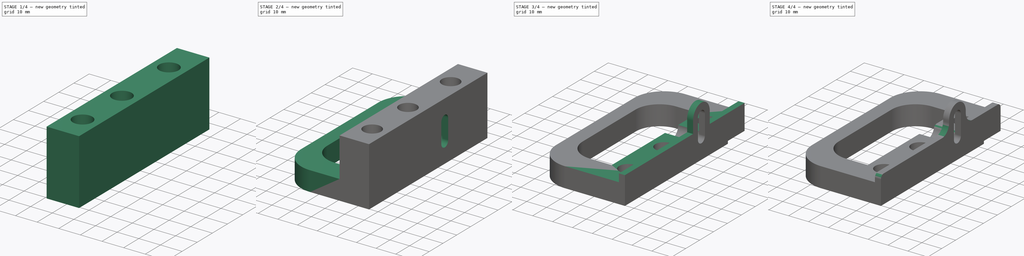
[diagram: build sequence overview — one tinted view per stage of 4, left to right]
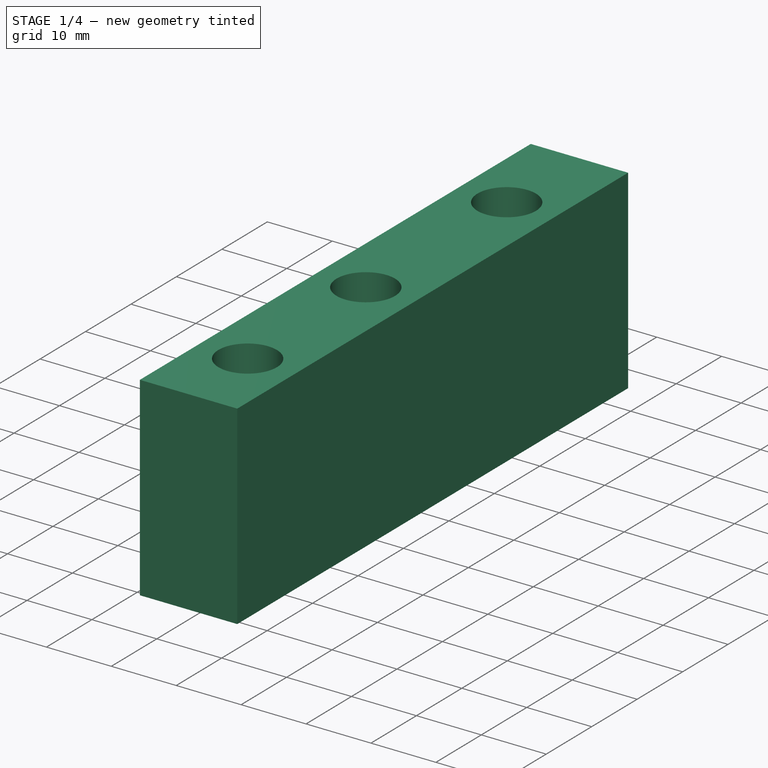
[diagram: stage 1 of 4 — iso view after this stage's code; geometry added in this stage tinted green]
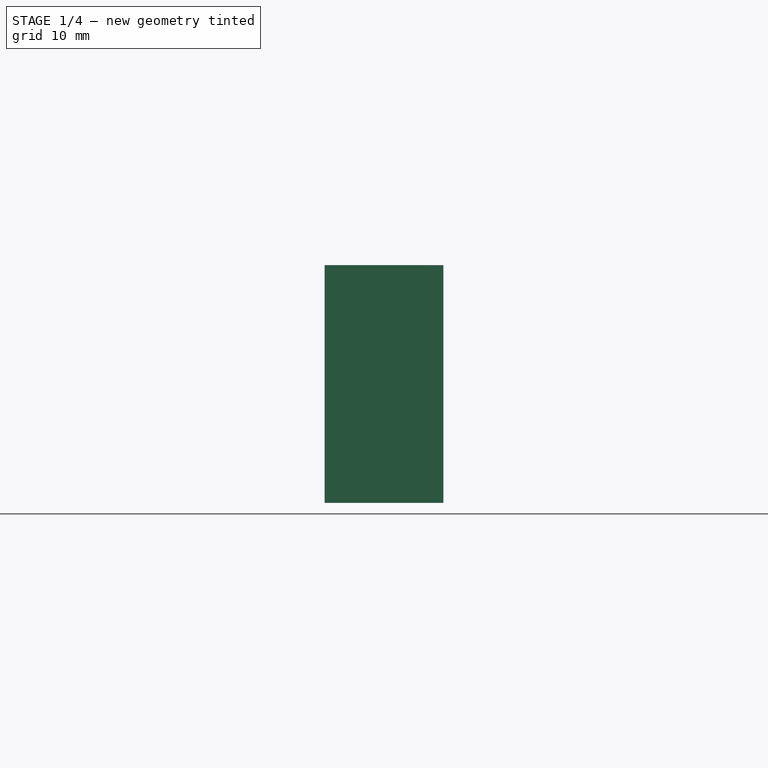
[diagram: stage 1 of 4 — front view after this stage's code; geometry added in this stage tinted green]
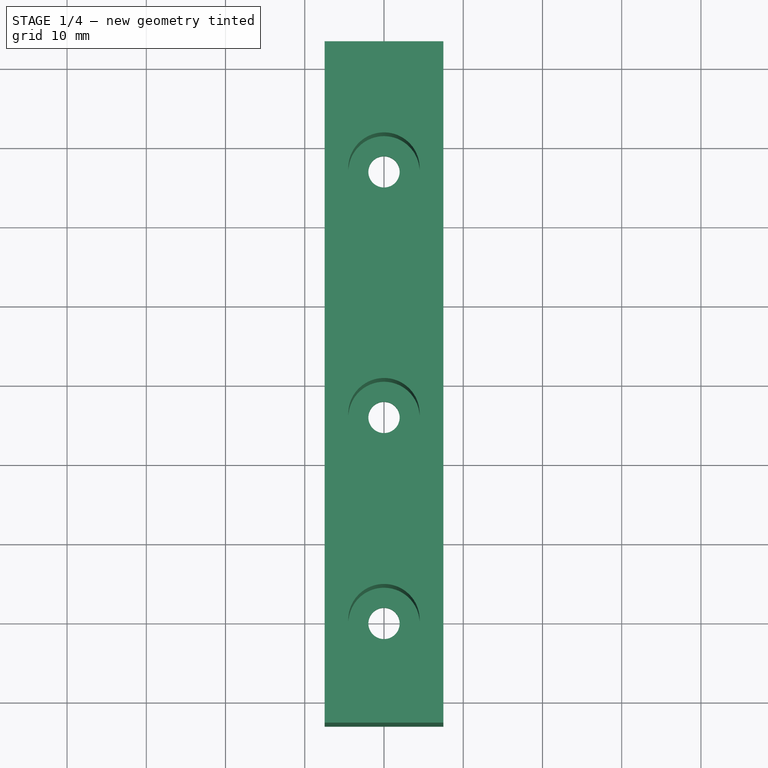
[diagram: stage 1 of 4 — top view after this stage's code; geometry added in this stage tinted green]
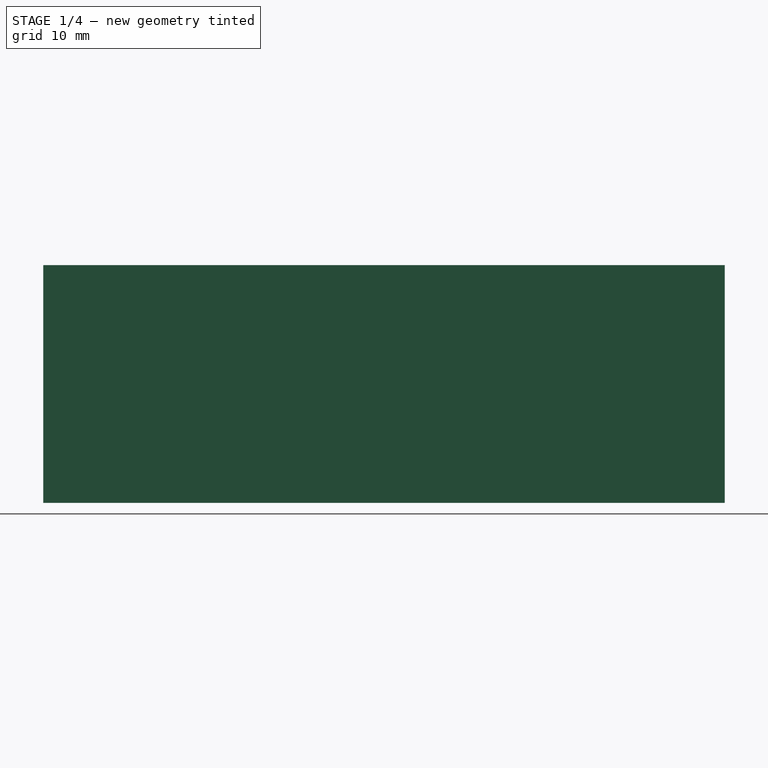
[diagram: stage 1 of 4 — right view after this stage's code; geometry added in this stage tinted green]
FCSTD DOCUMENT  (FreeCAD 1.0R39109 (Git))
Label: RackEars
License: All rights reserved
LicenseURL: https://en.wikipedia.org/wiki/All_rights_reserved
objects: Sketcher::SketchObject×9, PartDesign::Pocket×7, PartDesign::Fillet×3, PartDesign::Pad×2, PartDesign::Plane×1, PartDesign::Body×1
note: 56 computed .brp shape members not serialized (recipe doc carries the construction recipe); baked Part::Feature solids carry a one-line shape summary decoded from their .brp

FEATURE [Sketcher::SketchObject] Sketch
  ArcFitTolerance = 1e-06
  AttachmentSupport = -> [XY_Plane]
  FullyConstrained = true
  MakeInternals = false
  MapMode = 5
  sketch-geometry (5):
    g0: LineSegment StartX=-7.5 StartY=43 StartZ=0 EndX=-7.5 EndY=-43 EndZ=0
    g1: LineSegment StartX=-7.5 StartY=-43 StartZ=0 EndX=7.5 EndY=-43 EndZ=0
    g2: LineSegment StartX=7.5 StartY=-43 StartZ=0 EndX=7.5 EndY=43 EndZ=0
    g3: LineSegment StartX=7.5 StartY=43 StartZ=0 EndX=-7.5 EndY=43 EndZ=0
    g4: GeomPoint [constr] X=0 Y=0 Z=0
  constraints (12):
    c: Coincident(g0,g1)
    c: Coincident(g1,g2)
    c: Coincident(g2,g3)
    c: Coincident(g3,g0)
    c: Vertical(g0)
    c: Vertical(g2)
    c: Horizontal(g1)
    c: Horizontal(g3)
    c: Symmetric(g2,g0,g4)
    c: Coincident(g4,g-1)
    c: DistanceX(g3,g3) = 15
    c: DistanceY(g2,g2) = 86
FEATURE [PartDesign::Pad] Pad
  Direction = (0,0,1)
  Length = 30
  Length2 = 10
  Profile = -> Sketch
  ReferenceAxis = -> Sketch [N_Axis]
  Refine = true
  Suppressed = false
  Type = 0
FEATURE [Sketcher::SketchObject] Sketch001
  ArcFitTolerance = 1e-06
  AttachmentSupport = -> [Pad]
  ExternalGeometry = -> [Pad]
  FullyConstrained = true
  MakeInternals = false
  MapMode = 5
  Placement = pos=(0,0,30) rot=(0,0,1;0rad)
  sketch-geometry (3):
    g0: Circle CenterX=0 CenterY=-30 CenterZ=0 NormalX=0 NormalY=0 NormalZ=1 AngleXU=0 Radius=4.5
    g1: Circle CenterX=0 CenterY=-4 CenterZ=0 NormalX=0 NormalY=0 NormalZ=1 AngleXU=0 Radius=4.5
    g2: Circle CenterX=0 CenterY=27 CenterZ=0 NormalX=0 NormalY=0 NormalZ=1 AngleXU=0 Radius=4.5
  constraints (9):
    c: PointOnObject(g0,g-2)
    c: PointOnObject(g1,g-2)
    c: PointOnObject(g2,g-2)
    c: Distance(g1,g-3) = 39
    c: Diameter(g1) = 9
    c: Distance(g0,g-3) = 13
    c: Distance(g2,g-3) = 70
    c: Equal(g2,g1)
    c: Equal(g1,g0)
FEATURE [PartDesign::Pocket] Pocket
  BaseFeature = -> Pad
  Direction = (0,0,-1)
  Length = 0
  Length2 = 5
  Offset = -2.5
  Profile = -> Sketch001
  ReferenceAxis = -> Sketch001 [N_Axis]
  Refine = true
  Suppressed = false
  Type = 3
  UpToFace = -> Pad [Face5]
FEATURE [Sketcher::SketchObject] Sketch002
  ArcFitTolerance = 1e-06
  AttachmentSupport = -> [Pocket]
  ExternalGeometry = -> [Pocket]
  FullyConstrained = true
  MakeInternals = false
  MapMode = 5
  Placement = pos=(0,0,30) rot=(0,0,1;0rad)
  sketch-geometry (3):
    g0: Circle CenterX=0 CenterY=27 CenterZ=0 NormalX=0 NormalY=0 NormalZ=1 AngleXU=0 Radius=1.975
    g1: Circle CenterX=0 CenterY=-4 CenterZ=0 NormalX=0 NormalY=0 NormalZ=1 AngleXU=0 Radius=1.975
    g2: Circle CenterX=0 CenterY=-30 CenterZ=0 NormalX=0 NormalY=0 NormalZ=1 AngleXU=0 Radius=1.975
  constraints (6):
    c: Coincident(g0,g-3)
    c: Coincident(g1,g-4)
    c: Coincident(g2,g-5)
    c: Equal(g2,g1)
    c: Equal(g1,g0)
    c: Diameter(g0) = 3.95
FEATURE [PartDesign::Pocket] Pocket001
  BaseFeature = -> Pocket
  Direction = (0,0,-1)
  Length = 5
  Length2 = 5
  Profile = -> Sketch002
  ReferenceAxis = -> Sketch002 [N_Axis]
  Refine = true
  Suppressed = false
  Type = 1
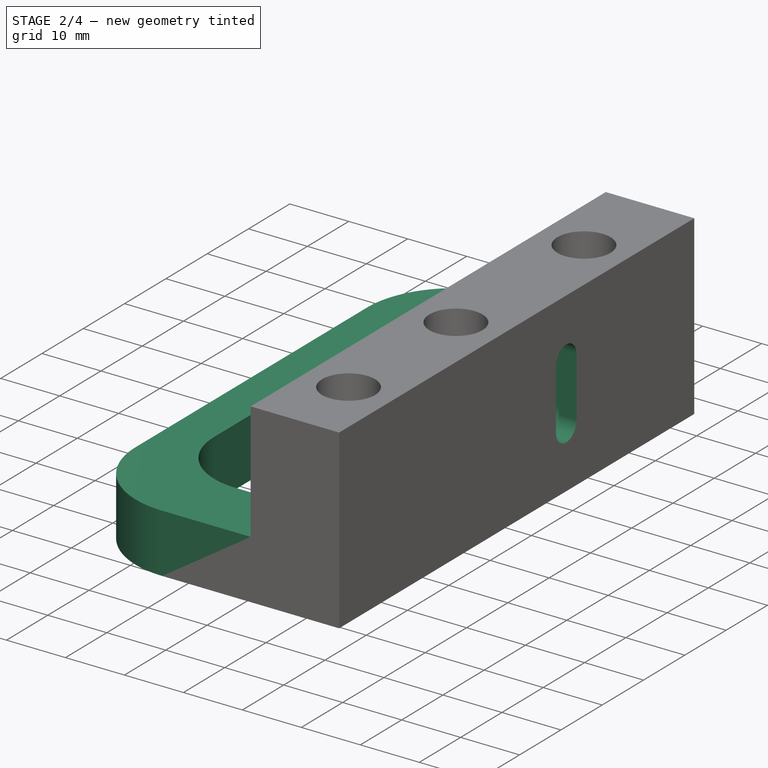
[diagram: stage 2 of 4 — iso view after this stage's code; geometry added in this stage tinted green]
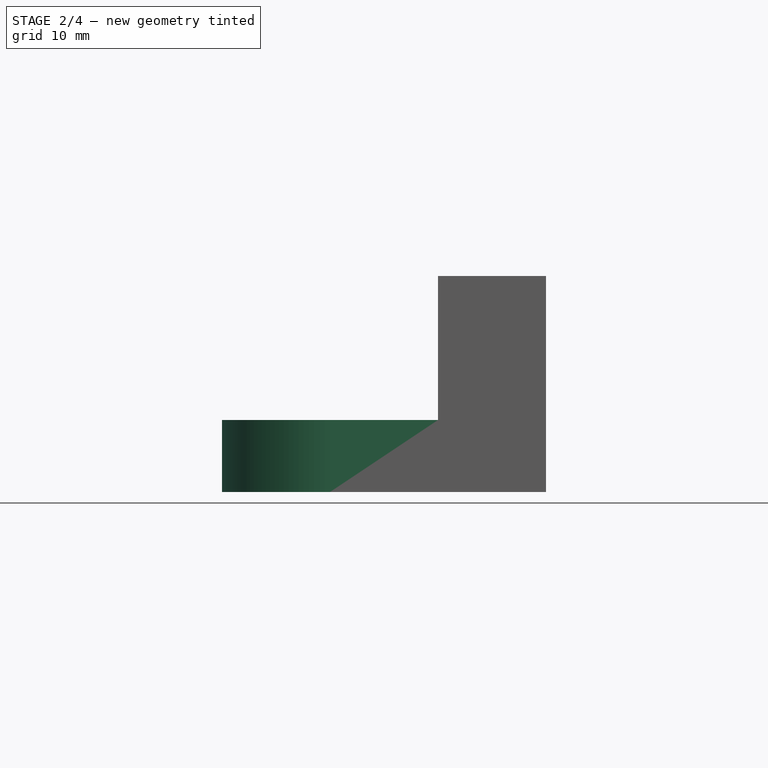
[diagram: stage 2 of 4 — front view after this stage's code; geometry added in this stage tinted green]
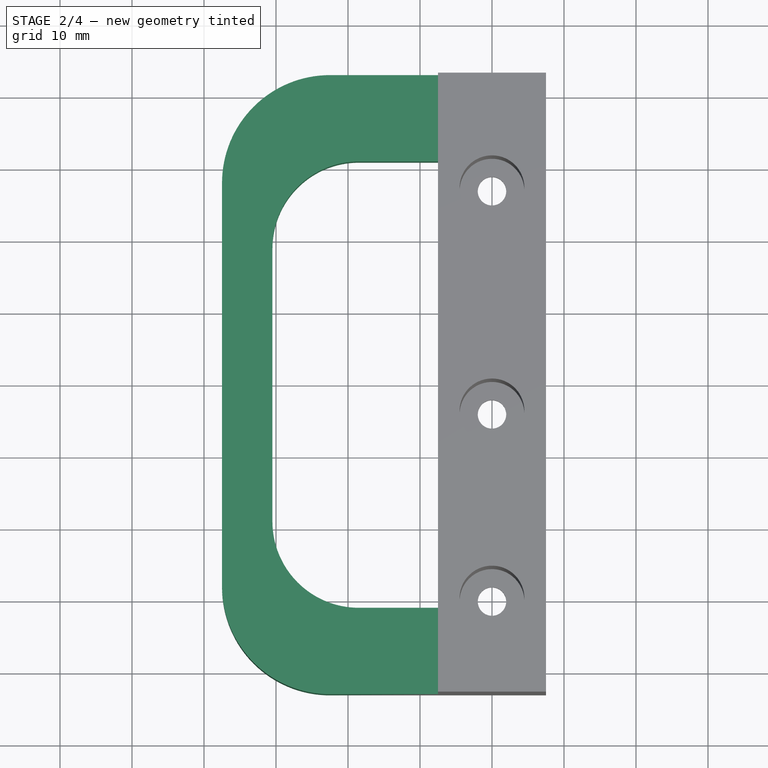
[diagram: stage 2 of 4 — top view after this stage's code; geometry added in this stage tinted green]
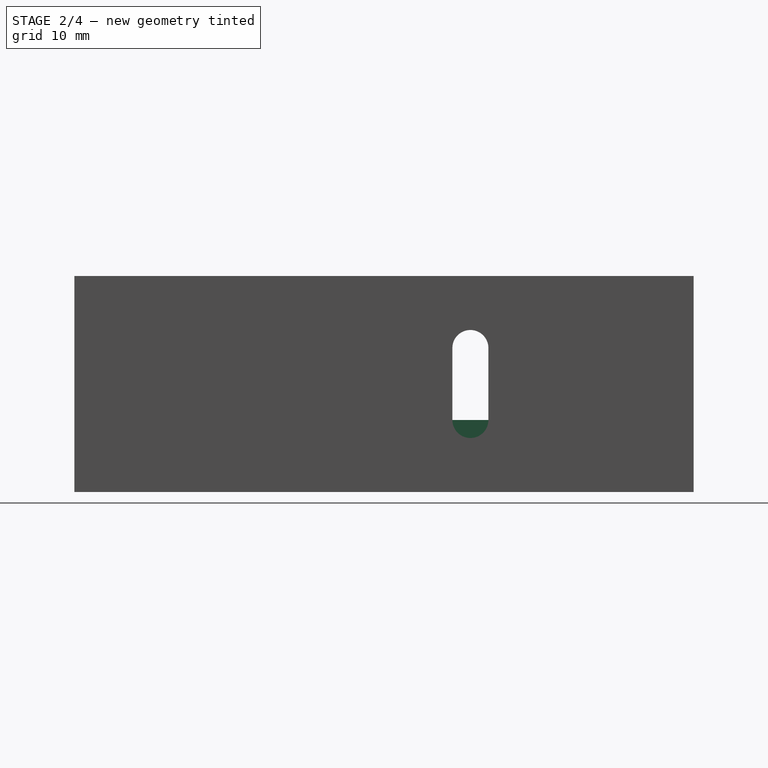
[diagram: stage 2 of 4 — right view after this stage's code; geometry added in this stage tinted green]
FEATURE [Sketcher::SketchObject] Sketch004
  ArcFitTolerance = 1e-06
  AttachmentSupport = -> [Pocket001]
  FullyConstrained = true
  MakeInternals = false
  MapMode = 5
  Placement = pos=(-7.5,0,0) rot=(0.57735,-0.57735,-0.57735;2.0944rad)
  sketch-geometry (6):
    g0: ArcOfCircle CenterX=-12 CenterY=20 CenterZ=0 NormalX=0 NormalY=0 NormalZ=1 AngleXU=0 Radius=4.75 StartAngle=2e-16 EndAngle=3.14159
    g1: ArcOfCircle CenterX=-12 CenterY=10 CenterZ=0 NormalX=0 NormalY=0 NormalZ=1 AngleXU=0 Radius=4.75 StartAngle=3.14159 EndAngle=6.28319
    g2: LineSegment StartX=-7.25 StartY=20 StartZ=0 EndX=-7.25 EndY=10 EndZ=0
    g3: LineSegment StartX=-16.75 StartY=20 StartZ=0 EndX=-16.75 EndY=10 EndZ=0
    g4: LineSegment [constr] StartX=-12 StartY=30 StartZ=0 EndX=-12 EndY=0 EndZ=0
    g5: GeomPoint [constr] X=-12 Y=15 Z=0
  constraints (14):
    c: Tangent(g0,g2) = 1.5708
    c: Tangent(g0,g3) = -1.5708
    c: Tangent(g1,g2) = 1.5708
    c: Tangent(g1,g3) = -1.5708
    c: Equal(g0,g1)
    c: Vertical(g2)
    c: Radius(g0) = 4.75
    c: Vertical(g4)
    c: PointOnObject(g4,g-3)
    c: PointOnObject(g4,g-1)
    c: Distance(g-2,g4) = 12
    c: DistanceY(g1,g0) = 10
    c: Symmetric(g1,g0,g5)
    c: Symmetric(g4,g4,g5)
FEATURE [PartDesign::Pocket] Pocket003
  BaseFeature = -> Pocket001
  Direction = (1,0,0)
  Length = 0
  Length2 = 5
  Offset = -3
  Profile = -> Sketch004
  ReferenceAxis = -> Sketch004 [N_Axis]
  Refine = true
  Suppressed = false
  Type = 3
  UpToFace = -> Pocket001 [Face6]
FEATURE [Sketcher::SketchObject] Sketch005
  ArcFitTolerance = 1e-06
  AttachmentSupport = -> [Pocket003]
  ExternalGeometry = -> [Pocket003]
  FullyConstrained = true
  MakeInternals = false
  MapMode = 5
  Placement = pos=(4.5,0,0) rot=(0.57735,-0.57735,-0.57735;2.0944rad)
  sketch-geometry (4):
    g0: ArcOfCircle CenterX=-12 CenterY=20 CenterZ=0 NormalX=0 NormalY=0 NormalZ=1 AngleXU=0 Radius=2.5 StartAngle=-9e-16 EndAngle=3.14159
    g1: ArcOfCircle CenterX=-12 CenterY=10 CenterZ=0 NormalX=0 NormalY=0 NormalZ=1 AngleXU=0 Radius=2.5 StartAngle=3.14159 EndAngle=6.28319
    g2: LineSegment StartX=-9.5 StartY=20 StartZ=0 EndX=-9.5 EndY=10 EndZ=0
    g3: LineSegment StartX=-14.5 StartY=20 StartZ=0 EndX=-14.5 EndY=10 EndZ=0
  constraints (8):
    c: Tangent(g0,g2) = 1.5708
    c: Tangent(g0,g3) = -1.5708
    c: Tangent(g1,g2) = 1.5708
    c: Tangent(g1,g3) = -1.5708
    c: Equal(g0,g1)
    c: Radius(g0) = 2.5
    c: Coincident(g1,g-4)
    c: Coincident(g-3,g0)
FEATURE [PartDesign::Pocket] Pocket004
  BaseFeature = -> Pocket003
  Direction = (1,0,0)
  Length = 5
  Length2 = 5
  Profile = -> Sketch005
  ReferenceAxis = -> Sketch005 [N_Axis]
  Refine = true
  Suppressed = false
  Type = 0
FEATURE [PartDesign::Plane] DatumPlane
  AttachmentOffset = pos=(0,0,-25) rot=(0,0,1;0rad)
  AttachmentSupport = -> [Pocket004]
  Length = 63.1149
  MapMode = 5
  Placement = pos=(0,0,5) rot=(0,0,1;0rad)
  ResizeMode = 0
  Width = 99.1149
FEATURE [Sketcher::SketchObject] Sketch006
  ArcFitTolerance = 1e-06
  AttachmentSupport = -> [DatumPlane]
  ExternalGeometry = -> [Pocket004]
  FullyConstrained = true
  MakeInternals = false
  MapMode = 5
  Placement = pos=(0,0,5) rot=(0,0,1;0rad)
  sketch-geometry (16):
    g0: LineSegment StartX=-7.5 StartY=43 StartZ=0 EndX=-22.5 EndY=43 EndZ=0
    g1: LineSegment StartX=-37.5 StartY=28 StartZ=0 EndX=-37.5 EndY=-28 EndZ=0
    g2: LineSegment StartX=-22.5 StartY=-43 StartZ=0 EndX=-7.5 EndY=-43 EndZ=0
    g3: LineSegment StartX=-7.5 StartY=-43 StartZ=0 EndX=-7.5 EndY=-31 EndZ=0
    g4: LineSegment StartX=-7.5 StartY=31 StartZ=0 EndX=-18.5 EndY=31 EndZ=0
    g5: LineSegment StartX=-30.5 StartY=19 StartZ=0 EndX=-30.5 EndY=-19 EndZ=0
    g6: LineSegment StartX=-18.5 StartY=-31 StartZ=0 EndX=-7.5 EndY=-31 EndZ=0
    g7: LineSegment StartX=-7.5 StartY=31 StartZ=0 EndX=-7.5 EndY=43 EndZ=0
    g8: ArcOfCircle CenterX=-18.5 CenterY=19 CenterZ=0 NormalX=0 NormalY=0 NormalZ=1 AngleXU=0 Radius=12 StartAngle=1.5708 EndAngle=3.14159
    g9: GeomPoint [constr] X=-30.5 Y=31 Z=0
    g10: ArcOfCircle CenterX=-18.5 CenterY=-19 CenterZ=0 NormalX=0 NormalY=0 NormalZ=1 AngleXU=0 Radius=12 StartAngle=3.14159 EndAngle=4.71239
    g11: GeomPoint [constr] X=-30.5 Y=-31 Z=0
    g12: ArcOfCircle CenterX=-22.5 CenterY=28 CenterZ=0 NormalX=0 NormalY=0 NormalZ=1 AngleXU=0 Radius=15 StartAngle=1.5708 EndAngle=3.14159
    g13: GeomPoint [constr] X=-37.5 Y=43 Z=0
    g14: ArcOfCircle CenterX=-22.5 CenterY=-28 CenterZ=0 NormalX=0 NormalY=0 NormalZ=1 AngleXU=0 Radius=15 StartAngle=3.14159 EndAngle=4.71239
    g15: GeomPoint [constr] X=-37.5 Y=-43 Z=0
  constraints (40):
    c: Coincident(g2,g3)
    c: Coincident(g7,g0)
    c: Horizontal(g0)
    c: Horizontal(g2)
    c: Vertical(g1)
    c: Vertical(g3)
    c: Coincident(g0,g-3)
    c: PointOnObject(g-3,g2)
    c: DistanceX(g13,g0) = 30
    c: Horizontal(g4)
    c: Horizontal(g6)
    c: Vertical(g5)
    c: PointOnObject(g4,g7)
    c: Distance(g15,g6) = 12
    c: Distance(g4,g0) = 12
    c: Distance(g9,g1) = 7
    c: PointOnObject(g7,g4)
    c: PointOnObject(g4,g-3)
    c: Coincident(g6,g3)
    c: PointOnObject(g3,g-3)
    c: PointOnObject(g9,g5)
    c: PointOnObject(g9,g4)
    c: Tangent(g5,g8) = -1.5708
    c: Tangent(g4,g8) = -1.5708
    c: PointOnObject(g11,g5)
    c: PointOnObject(g11,g6)
    c: Tangent(g5,g10) = -1.5708
    c: Tangent(g6,g10) = -1.5708
    c: PointOnObject(g13,g0)
    c: PointOnObject(g13,g1)
    c: Tangent(g0,g12) = -1.5708
    c: Tangent(g1,g12) = -1.5708
    c: PointOnObject(g15,g1)
    c: PointOnObject(g15,g2)
    c: Tangent(g1,g14) = -1.5708
    c: Tangent(g2,g14) = -1.5708
    c: Radius(g8) = 12
    c: Radius(g12) = 15
    c: Equal(g10,g8)
    c: Equal(g14,g12)
FEATURE [PartDesign::Pad] Pad001
  BaseFeature = -> Pocket004
  Direction = (0,0,1)
  Length = 10
  Length2 = 10
  Midplane = true
  Profile = -> Sketch006
  ReferenceAxis = -> Sketch006 [N_Axis]
  Refine = true
  Suppressed = false
  Type = 0
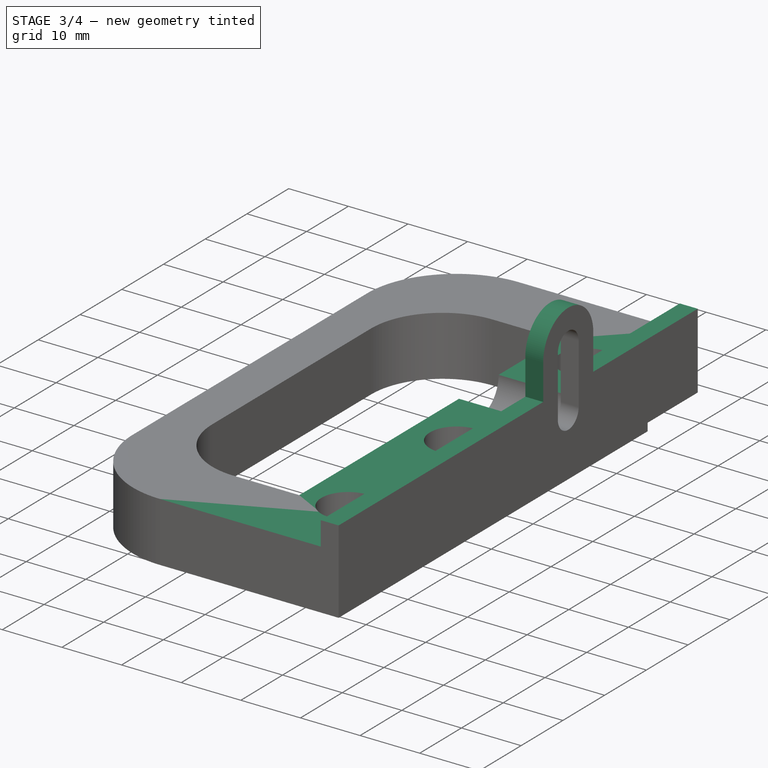
[diagram: stage 3 of 4 — iso view after this stage's code; geometry added in this stage tinted green]
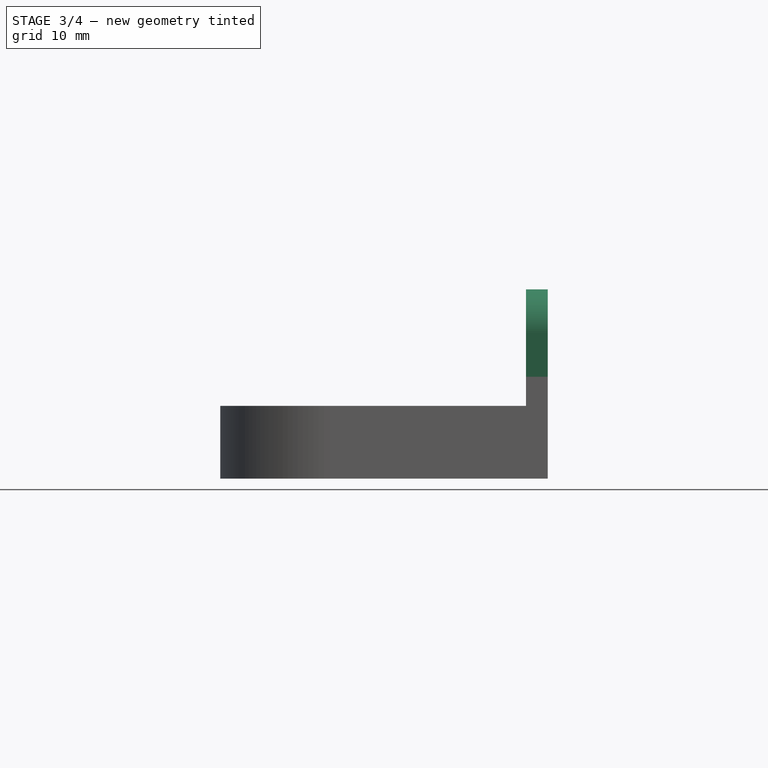
[diagram: stage 3 of 4 — front view after this stage's code; geometry added in this stage tinted green]
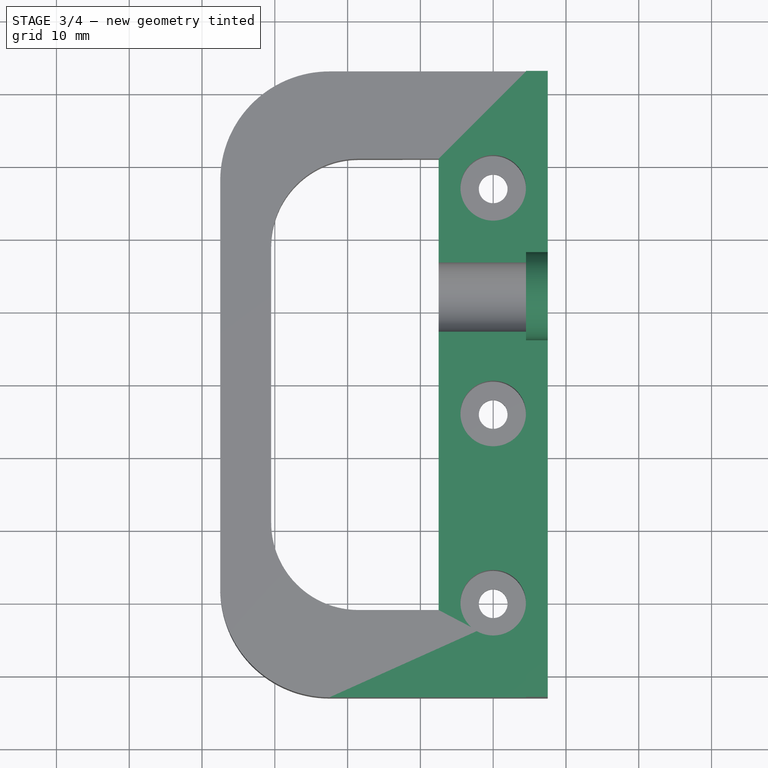
[diagram: stage 3 of 4 — top view after this stage's code; geometry added in this stage tinted green]
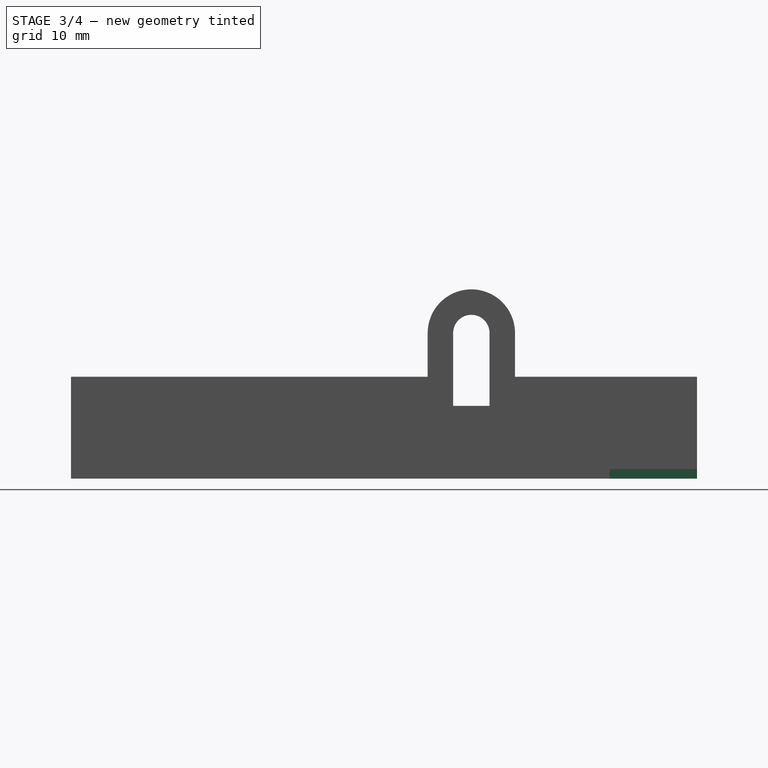
[diagram: stage 3 of 4 — right view after this stage's code; geometry added in this stage tinted green]
FEATURE [Sketcher::SketchObject] Sketch007
  ArcFitTolerance = 1e-06
  AttachmentSupport = -> [Pad001]
  ExternalGeometry = -> [Pad001]
  FullyConstrained = true
  MakeInternals = false
  MapMode = 5
  Placement = pos=(0,0,0) rot=(1,0,0;3.14159rad)
  sketch-geometry (4):
    g0: LineSegment StartX=7.5 StartY=-43 StartZ=0 EndX=7.5 EndY=-31 EndZ=0
    g1: LineSegment StartX=7.5 StartY=-31 StartZ=0 EndX=-12.5 EndY=-31 EndZ=0
    g2: LineSegment StartX=-12.5 StartY=-31 StartZ=0 EndX=-12.5 EndY=-43 EndZ=0
    g3: LineSegment StartX=-12.5 StartY=-43 StartZ=0 EndX=7.5 EndY=-43 EndZ=0
  constraints (11):
    c: Coincident(g0,g1)
    c: Coincident(g1,g2)
    c: Coincident(g2,g3)
    c: Coincident(g3,g0)
    c: Vertical(g0)
    c: Vertical(g2)
    c: Horizontal(g1)
    c: Horizontal(g3)
    c: Coincident(g0,g-4)
    c: DistanceY(g0,g0) = 12
    c: DistanceX(g3,g3) = 20
FEATURE [PartDesign::Pocket] Pocket005
  BaseFeature = -> Pad001
  Direction = (0,0,1)
  Length = 1.3
  Length2 = 5
  Profile = -> Sketch007
  ReferenceAxis = -> Sketch007 [N_Axis]
  Refine = true
  Suppressed = false
  Type = 0
FEATURE [Sketcher::SketchObject] Sketch008
  ArcFitTolerance = 1e-06
  AttachmentSupport = -> [Pocket005]
  ExternalGeometry = -> [Pocket005]
  FullyConstrained = true
  MakeInternals = false
  MapMode = 5
  Placement = pos=(4.5,0,0) rot=(0.57735,-0.57735,-0.57735;2.0944rad)
  sketch-geometry (4):
    g0: LineSegment StartX=-43 StartY=30 StartZ=0 EndX=-43 EndY=10 EndZ=0
    g1: LineSegment StartX=-43 StartY=10 StartZ=0 EndX=43 EndY=10 EndZ=0
    g2: LineSegment StartX=43 StartY=10 StartZ=0 EndX=43 EndY=30 EndZ=0
    g3: LineSegment StartX=43 StartY=30 StartZ=0 EndX=-43 EndY=30 EndZ=0
  constraints (10):
    c: Coincident(g0,g1)
    c: Coincident(g1,g2)
    c: Coincident(g2,g3)
    c: Coincident(g3,g0)
    c: Vertical(g0)
    c: Vertical(g2)
    c: Horizontal(g1)
    c: Horizontal(g3)
    c: Coincident(g0,g-4)
    c: Coincident(g1,g-5)
FEATURE [PartDesign::Pocket] Pocket006
  BaseFeature = -> Pocket005
  Direction = (1,0,0)
  Length = 5
  Length2 = 5
  Profile = -> Sketch008
  ReferenceAxis = -> Sketch008 [N_Axis]
  Refine = true
  Reversed = true
  Suppressed = false
  Type = 1
FEATURE [Sketcher::SketchObject] Sketch009
  ArcFitTolerance = 1e-06
  AttachmentSupport = -> [Pocket006]
  ExternalGeometry = -> [Pocket006]
  FullyConstrained = true
  MakeInternals = false
  MapMode = 5
  Placement = pos=(4.5,0,0) rot=(0.57735,-0.57735,-0.57735;2.0944rad)
  sketch-geometry (8):
    g0: LineSegment StartX=-43 StartY=14 StartZ=0 EndX=-18 EndY=14 EndZ=0
    g1: LineSegment StartX=-6 StartY=14 StartZ=0 EndX=43 EndY=14 EndZ=0
    g2: ArcOfCircle CenterX=-12 CenterY=20 CenterZ=0 NormalX=0 NormalY=0 NormalZ=1 AngleXU=0 Radius=6 StartAngle=4e-16 EndAngle=3.14159
    g3: LineSegment StartX=-18 StartY=20 StartZ=0 EndX=-18 EndY=14 EndZ=0
    g4: LineSegment StartX=-6 StartY=20 StartZ=0 EndX=-6 EndY=14 EndZ=0
    g5: LineSegment StartX=-43 StartY=14 StartZ=0 EndX=-43 EndY=30 EndZ=0
    g6: LineSegment StartX=43 StartY=30 StartZ=0 EndX=-43 EndY=30 EndZ=0
    g7: LineSegment StartX=43 StartY=30 StartZ=0 EndX=43 EndY=14 EndZ=0
  constraints (20):
    c: PointOnObject(g1,g-8)
    c: PointOnObject(g0,g-6)
    c: Horizontal(g0)
    c: Horizontal(g1)
    c: Coincident(g2,g-4)
    c: Diameter(g2) = 12
    c: Coincident(g3,g0)
    c: Coincident(g4,g1)
    c: Tangent(g2,g3) = -1.5708
    c: Tangent(g2,g4) = 1.5708
    c: Vertical(g3)
    c: Vertical(g4)
    c: Coincident(g5,g0)
    c: Coincident(g5,g-7)
    c: Coincident(g6,g-8)
    c: Coincident(g6,g5)
    c: Coincident(g7,g6)
    c: Coincident(g7,g1)
    c: Equal(g5,g7)
    c: Distance(g3,g3) = 6
FEATURE [PartDesign::Pocket] Pocket007
  BaseFeature = -> Pocket006
  Direction = (1,0,0)
  Length = 5
  Length2 = 5
  Profile = -> Sketch009
  ReferenceAxis = -> Sketch009 [N_Axis]
  Refine = true
  Suppressed = false
  Type = 0
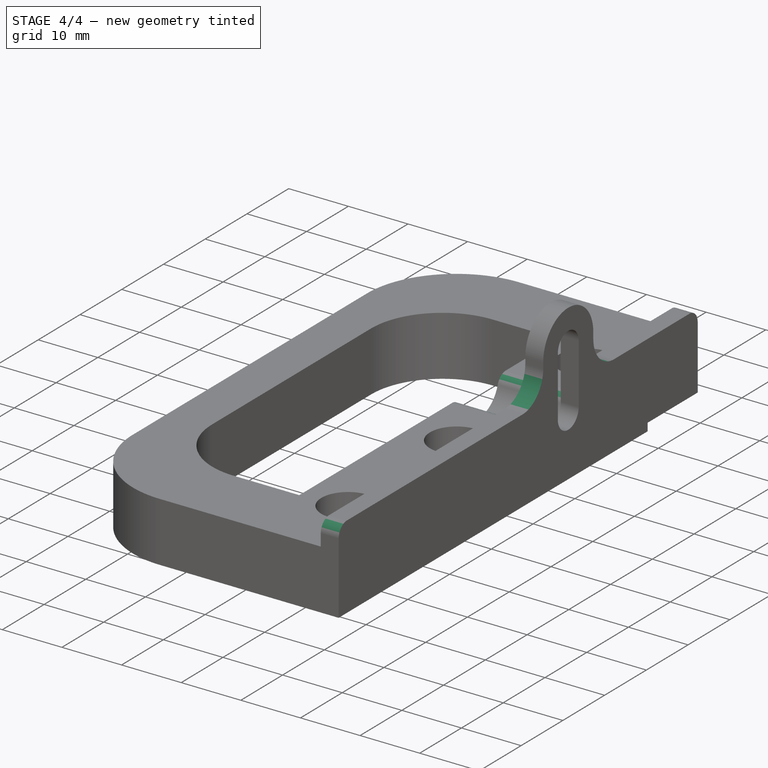
[diagram: stage 4 of 4 — iso view after this stage's code; geometry added in this stage tinted green]
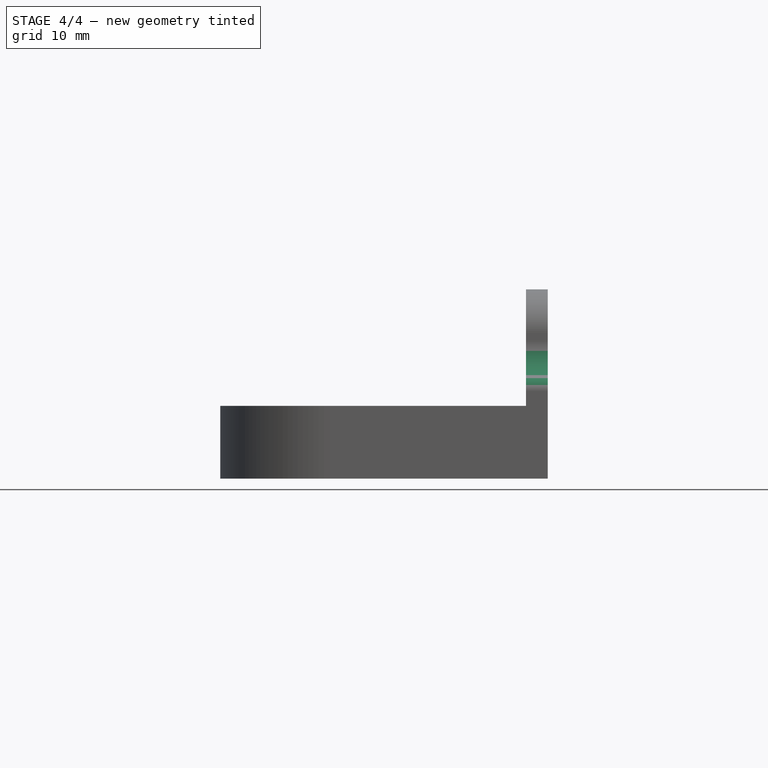
[diagram: stage 4 of 4 — front view after this stage's code; geometry added in this stage tinted green]
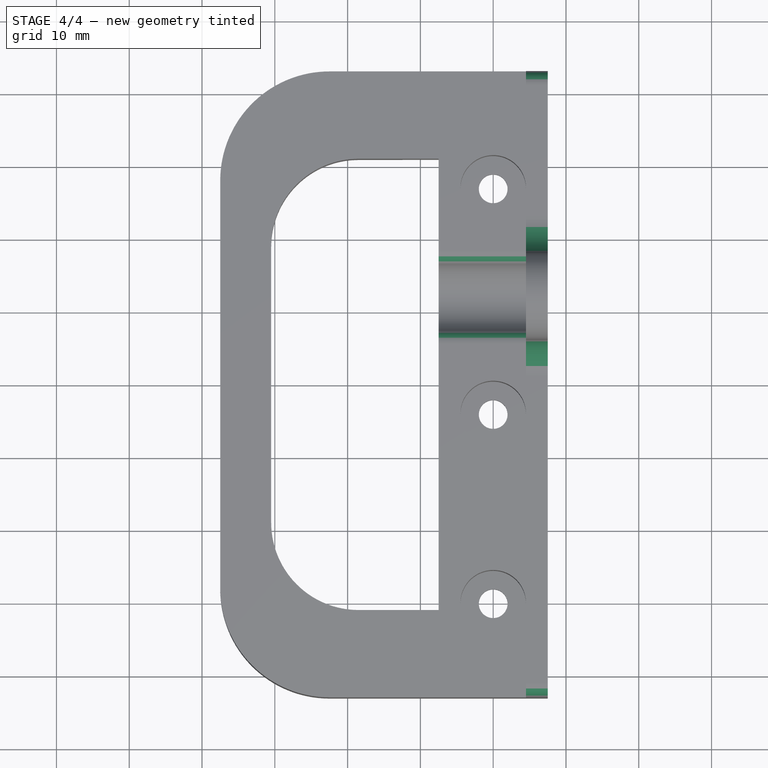
[diagram: stage 4 of 4 — top view after this stage's code; geometry added in this stage tinted green]
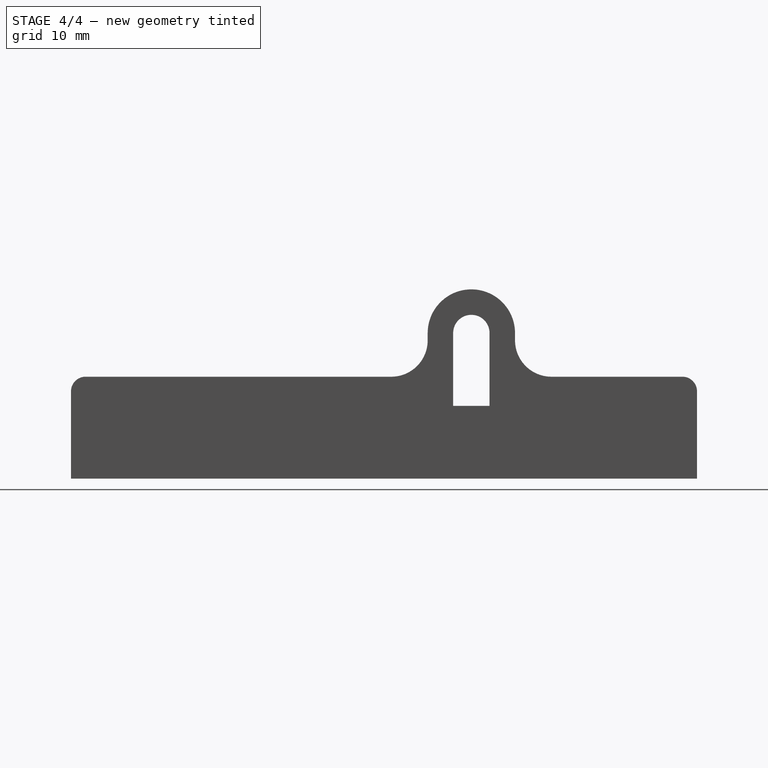
[diagram: stage 4 of 4 — right view after this stage's code; geometry added in this stage tinted green]
FEATURE [PartDesign::Fillet] Fillet
  Base = -> Pocket007 [Edge75,Edge81]
  BaseFeature = -> Pocket007
  Radius = 5
  Refine = true
  SupportTransform = false
  Suppressed = false
  UseAllEdges = false
FEATURE [PartDesign::Fillet] Fillet001
  Base = -> Fillet [Edge21,Edge56]
  BaseFeature = -> Fillet
  Radius = 2
  Refine = true
  SupportTransform = false
  Suppressed = false
  UseAllEdges = false
FEATURE [PartDesign::Fillet] Fillet002
  Base = -> Fillet001 [Edge37,Edge45]
  BaseFeature = -> Fillet001
  Radius = 2
  Refine = true
  SupportTransform = false
  Suppressed = false
  UseAllEdges = false
FEATURE [PartDesign::Body] Body  label="ear"
  AllowCompound = false
  Group = -> [Sketch,Pad,Sketch001,Pocket,Sketch002,Pocket001,Sketch004,Pocket003,Sketch005,Pocket004,DatumPlane,Sketch006,Pad001,Sketch007,Pocket005,Sketch008,Pocket006,Sketch009,Pocket007,Fillet,Fillet001,Fillet002]
  Origin = -> Origin
  Tip = -> Fillet002
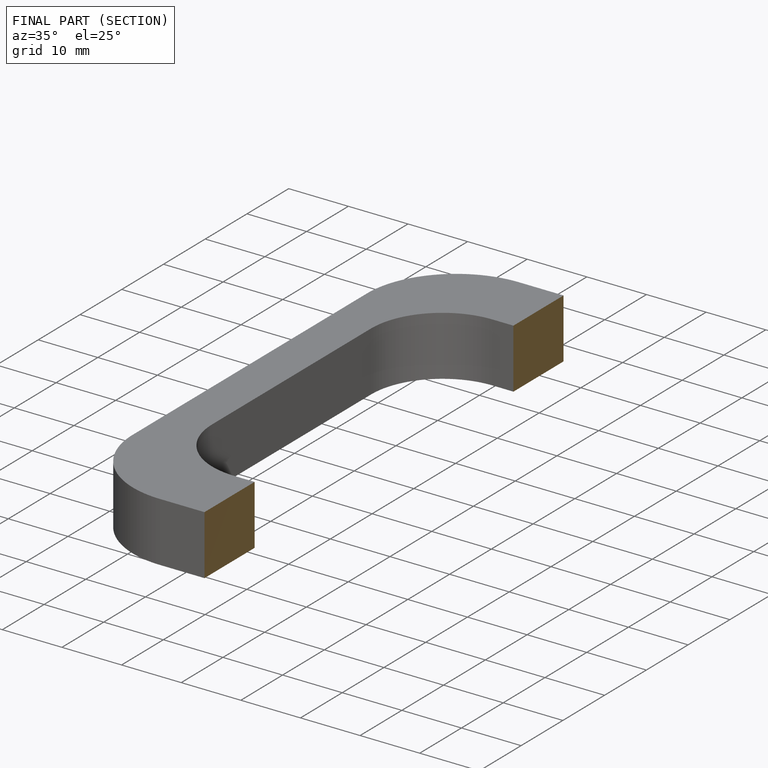
[diagram: finished part — half-section view (interior)]
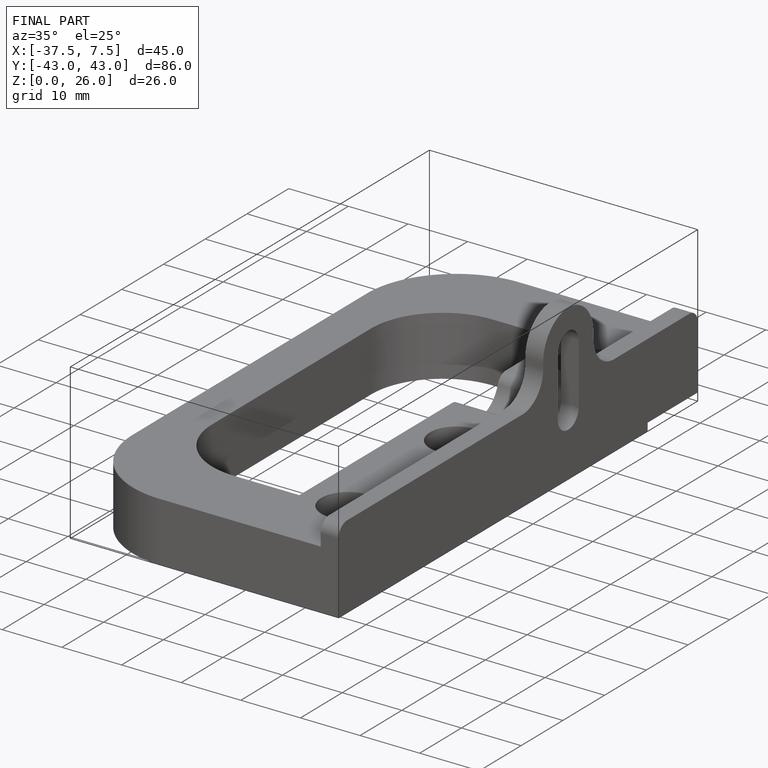
[diagram: finished part — iso view with bounding-box wireframe]
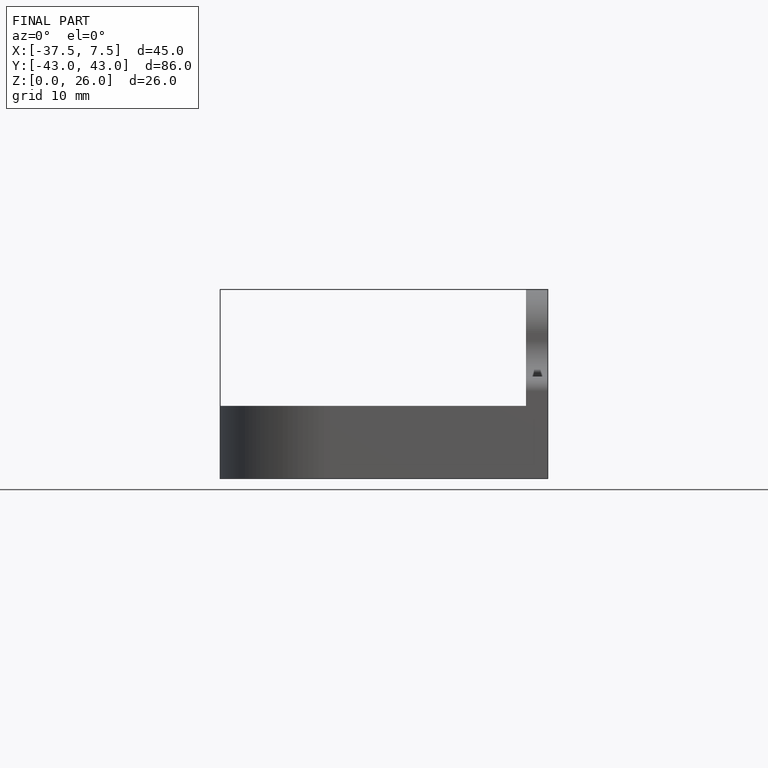
[diagram: finished part — front view with bounding-box wireframe]
